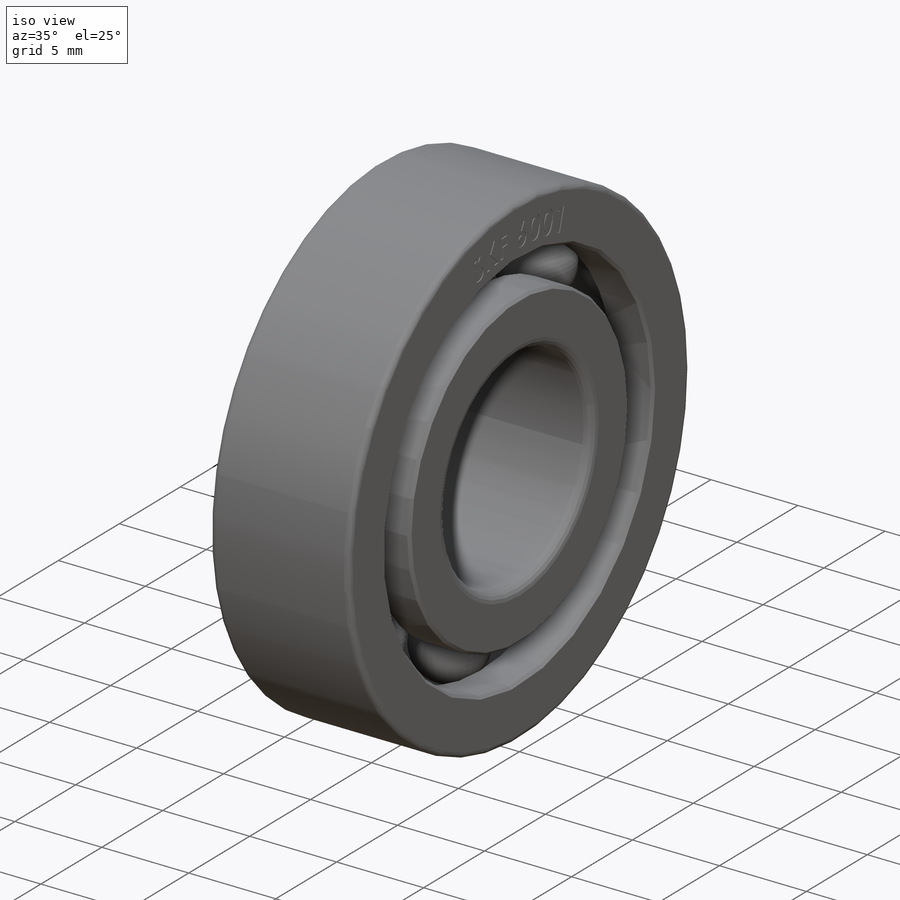
[diagram: iso view]
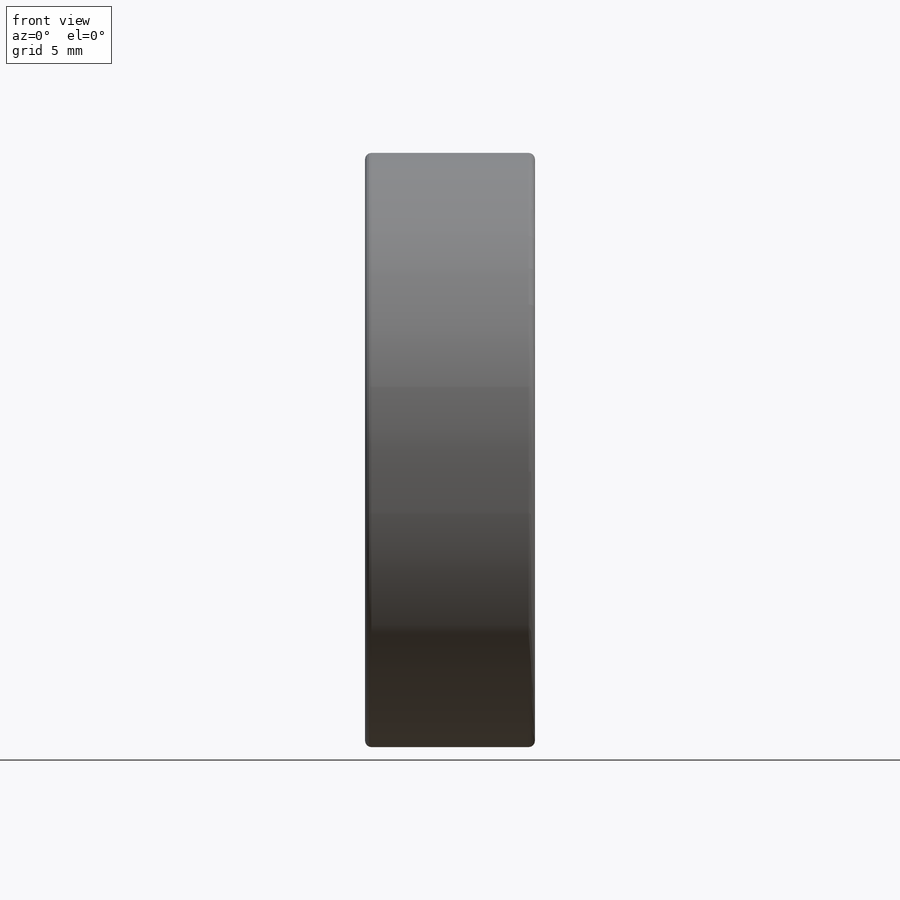
[diagram: front view]
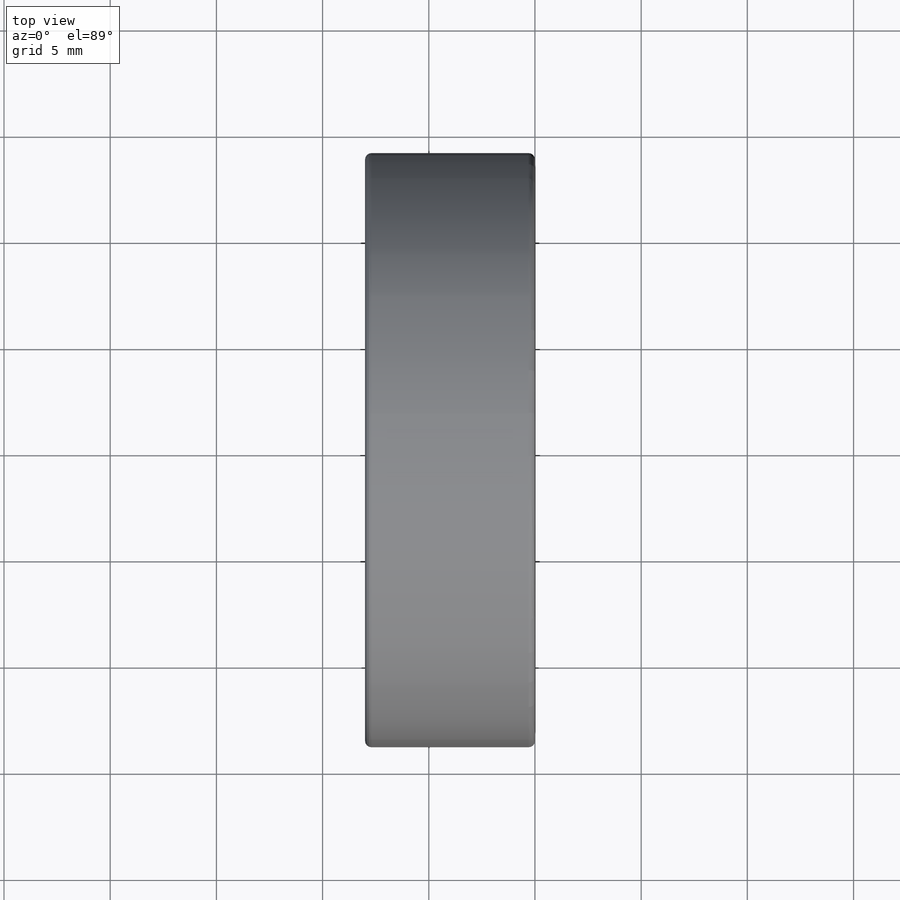
[diagram: top view]
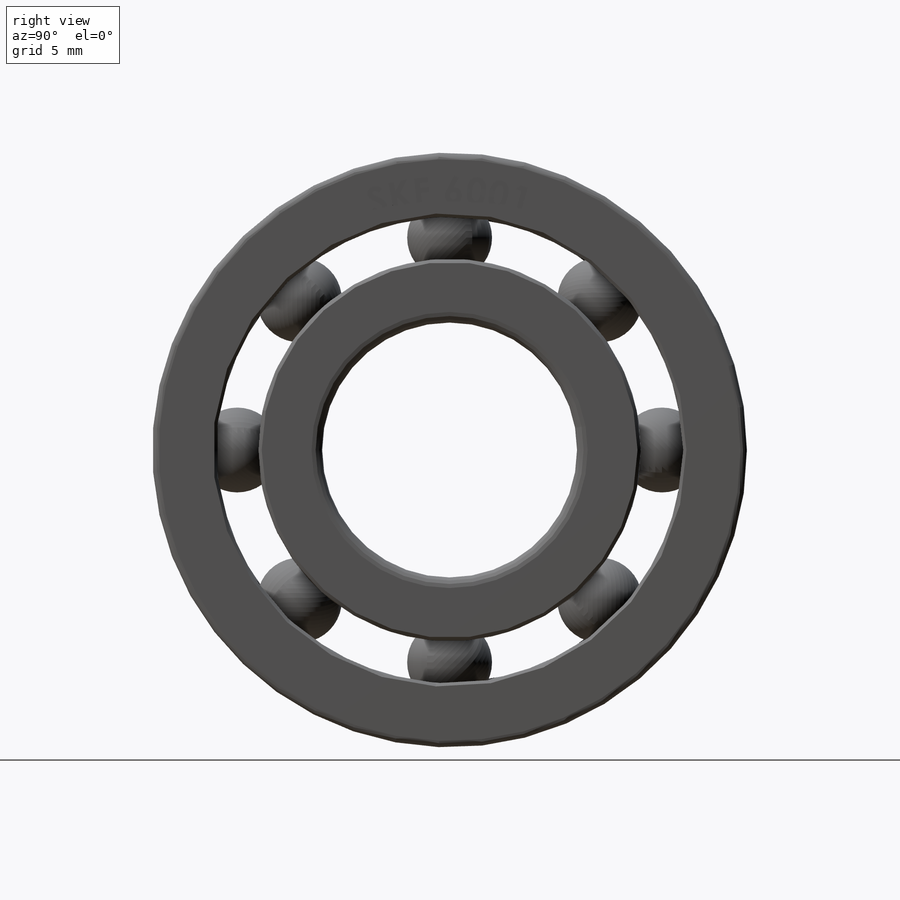
[diagram: right view]
SOLIDWORKS PART (.sldprt)
format: sldprt  version: not decoded by parser v0  size: 679,424 bytes
history: native  units: mm
features: sketch x5, revolve x2, plane x2, extrude x2, material x1, pattern_circular x1 (+12 scaffold rows collapsed)
feature tree (25):
  scaffold x12  (default folders/planes/origin — collapsed)
  material  "Chrome Stainless Steel"
  sketch  "Sketch1"  dims[c1.D4=4.0mm c1.D10=0.3mm c1.D11=0.5mm c1.D1=6.0mm c1.D2=14.0mm c1.D3=8.0mm c1.D5=4.0mm c1.D6=4.0mm c1.D7=10.0mm c1.D8=2.0mm c1.D9=3.0mm c2.D8=3.0mm]
  revolve  "Revolve1"  Angle=360deg
  sketch  "Sketch2"  dims[D1=4.0mm D2=4.0mm D3=10.0mm]
  revolve  "Revolve2"  Angle=360deg
  pattern_circular  "CirPattern1"  Count=8 Angle=360deg
  sketch  "Sketch5"  dims[c1.D1=23.2mm c1.D2=11.6mm c2.D2=30.0deg c2.D1=0.05mm]
  plane  "Plane1"  Offset=0.5mm
  sketch  "Sketch3"  dims[D1=22.0mm D2=18.0mm]
  extrude  "Seal 1"  Depth=0.2mm
  plane  "Plane2"  Offset=0.5mm
  sketch  "Sketch4"  dims[D1=22.0mm D2=18.0mm]
  extrude  "Seal 2"  Depth=0.2mm
decode coverage: 10 of 10 modeling features carry decoded parameters
note: suppression state not decoded; provenance and decode notes live in map.json
